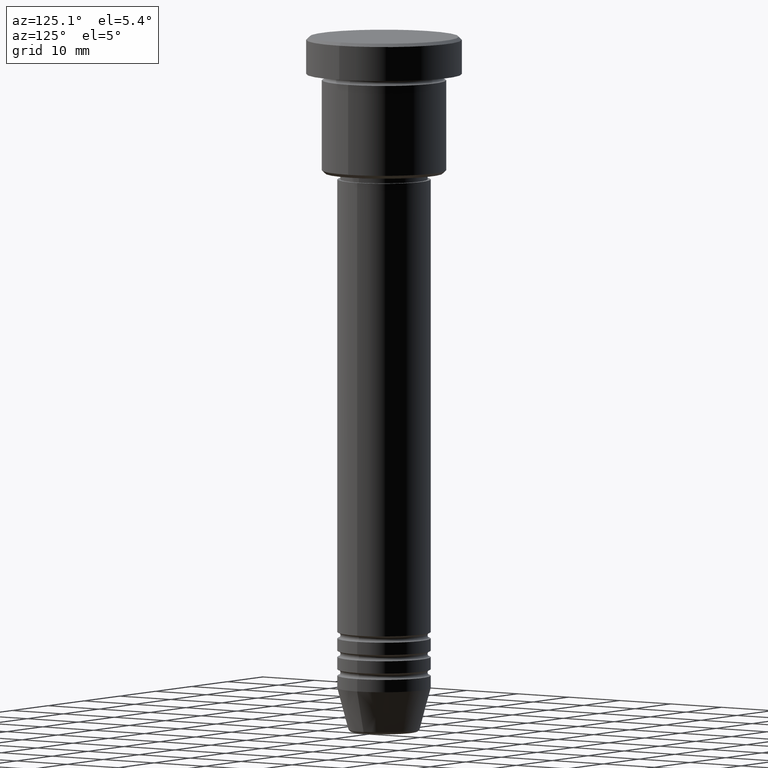
[diagram: clean part render]
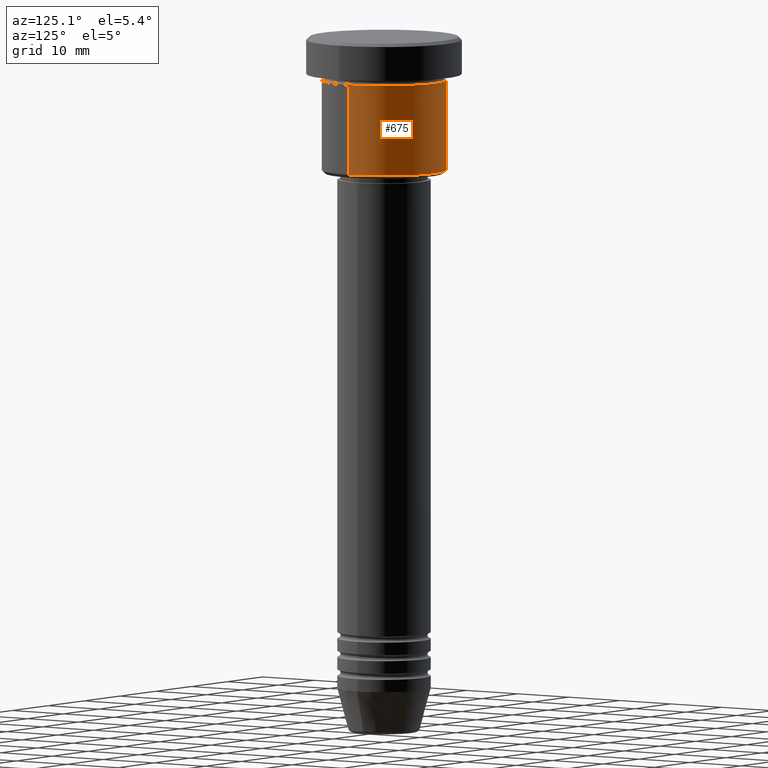
[diagram: same view with one face highlighted and labeled with its STEP entity id]
A machine part, auxiliary view. The second image highlights one B-rep face of the part: STEP entity #675.
In plain terms, the highlighted cylindrical surface (partial cylindrical patch) has radius 10 mm, axis along (-0, -0, 1).
Its self-contained STEP definition (entity closure, byte-faithful):
#18 = DIRECTION ( 'NONE',  ( -0.000000000000000000, -0.000000000000000000, 1.000000000000000000 ) ) ;
#32 = DIRECTION ( 'NONE',  ( -1.000000000000000000, 0.000000000000000000, 0.000000000000000000 ) ) ;
#40 = DIRECTION ( 'NONE',  ( -0.000000000000000000, -0.000000000000000000, 1.000000000000000000 ) ) ;
#158 = DIRECTION ( 'NONE',  ( 1.000000000000000000, 0.000000000000000000, 0.000000000000000000 ) ) ;
#162 = VERTEX_POINT ( 'NONE', #828 ) ;
#170 = VECTOR ( 'NONE', #18, 1000.000000000000000 ) ;
#196 = EDGE_CURVE ( 'NONE', #925, #162, #847, .T. ) ;
#219 = FACE_OUTER_BOUND ( 'NONE', #746, .T. ) ;
#254 = VERTEX_POINT ( 'NONE', #498 ) ;
#327 = CARTESIAN_POINT ( 'NONE',  ( 0.000000000000000000, 0.000000000000000000, 0.000000000000000000 ) ) ;
#349 = CARTESIAN_POINT ( 'NONE',  ( -10.00000000000000000, 1.224646799147353256E-15, -21.49999999999997513 ) ) ;
#351 = AXIS2_PLACEMENT_3D ( 'NONE', #1127, #40, #32 ) ;
#355 = DIRECTION ( 'NONE',  ( -0.000000000000000000, -0.000000000000000000, 1.000000000000000000 ) ) ;
#357 = EDGE_CURVE ( 'NONE', #254, #162, #429, .T. ) ;
#377 = ORIENTED_EDGE ( 'NONE', *, *, #780, .T. ) ;
#422 = DIRECTION ( 'NONE',  ( -0.000000000000000000, -0.000000000000000000, 1.000000000000000000 ) ) ;
#429 = CIRCLE ( 'NONE', #745, 10.00000000000000000 ) ;
#434 = EDGE_CURVE ( 'NONE', #926, #254, #1161, .T. ) ;
#498 = CARTESIAN_POINT ( 'NONE',  ( 10.00000000000000000, 0.000000000000000000, -6.999999999999996447 ) ) ;
#598 = CYLINDRICAL_SURFACE ( 'NONE', #995, 10.00000000000000000 ) ;
#622 = DIRECTION ( 'NONE',  ( -0.000000000000000000, -0.000000000000000000, 1.000000000000000000 ) ) ;
#675 = ADVANCED_FACE ( 'NONE', ( #219 ), #598, .T. ) ;
#676 = CARTESIAN_POINT ( 'NONE',  ( -10.00000000000000000, 1.224646799147353256E-15, 0.000000000000000000 ) ) ;
#717 = CARTESIAN_POINT ( 'NONE',  ( 10.00000000000000000, 0.000000000000000000, -21.49999999999997513 ) ) ;
#745 = AXIS2_PLACEMENT_3D ( 'NONE', #1071, #622, #158 ) ;
#746 = EDGE_LOOP ( 'NONE', ( #377, #979, #1063, #787 ) ) ;
#780 = EDGE_CURVE ( 'NONE', #926, #925, #1035, .T. ) ;
#787 = ORIENTED_EDGE ( 'NONE', *, *, #434, .F. ) ;
#823 = VECTOR ( 'NONE', #355, 1000.000000000000000 ) ;
#828 = CARTESIAN_POINT ( 'NONE',  ( -10.00000000000000000, 1.224646799147353256E-15, -6.999999999999996447 ) ) ;
#847 = LINE ( 'NONE', #676, #170 ) ;
#925 = VERTEX_POINT ( 'NONE', #349 ) ;
#926 = VERTEX_POINT ( 'NONE', #717 ) ;
#958 = DIRECTION ( 'NONE',  ( 1.000000000000000000, 0.000000000000000000, 0.000000000000000000 ) ) ;
#979 = ORIENTED_EDGE ( 'NONE', *, *, #196, .T. ) ;
#995 = AXIS2_PLACEMENT_3D ( 'NONE', #327, #422, #958 ) ;
#1035 = CIRCLE ( 'NONE', #351, 10.00000000000000000 ) ;
#1063 = ORIENTED_EDGE ( 'NONE', *, *, #357, .F. ) ;
#1066 = CARTESIAN_POINT ( 'NONE',  ( 10.00000000000000000, 0.000000000000000000, 0.000000000000000000 ) ) ;
#1071 = CARTESIAN_POINT ( 'NONE',  ( 0.000000000000000000, 0.000000000000000000, -6.999999999999996447 ) ) ;
#1127 = CARTESIAN_POINT ( 'NONE',  ( 0.000000000000000000, 0.000000000000000000, -21.49999999999997513 ) ) ;
#1161 = LINE ( 'NONE', #1066, #823 ) ;